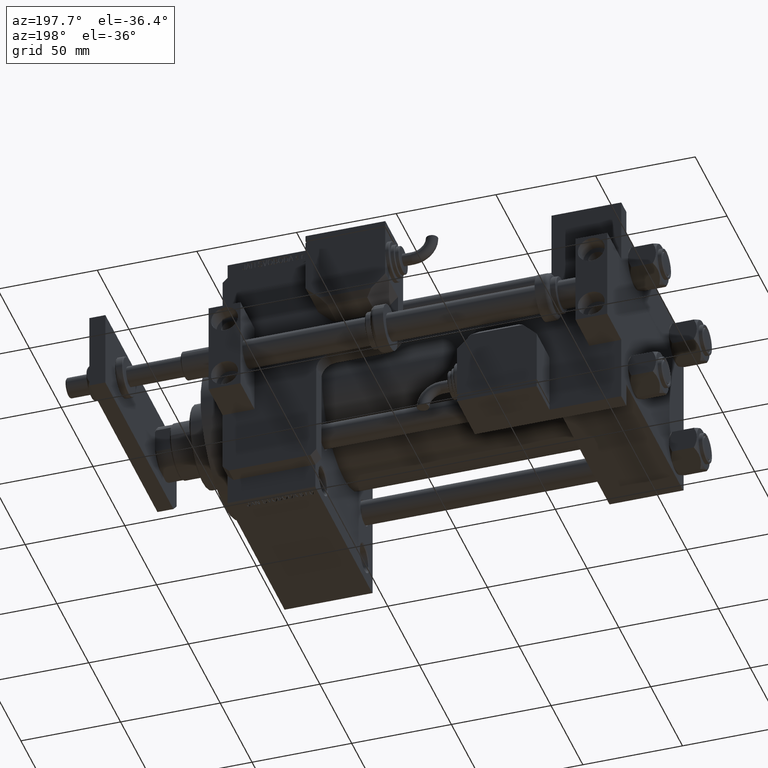
[diagram: clean part render]
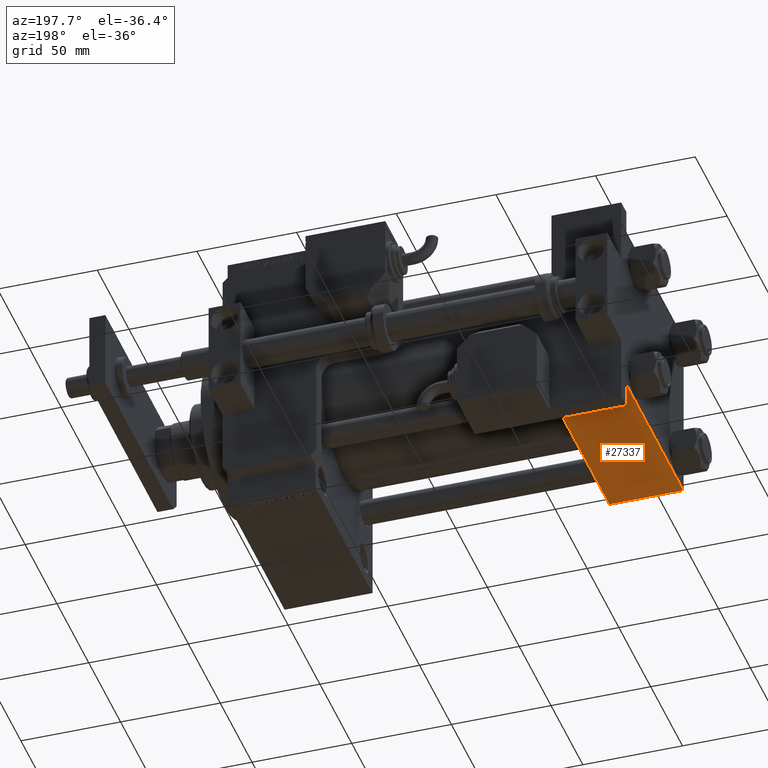
[diagram: same view with one face highlighted and labeled with its STEP entity id]
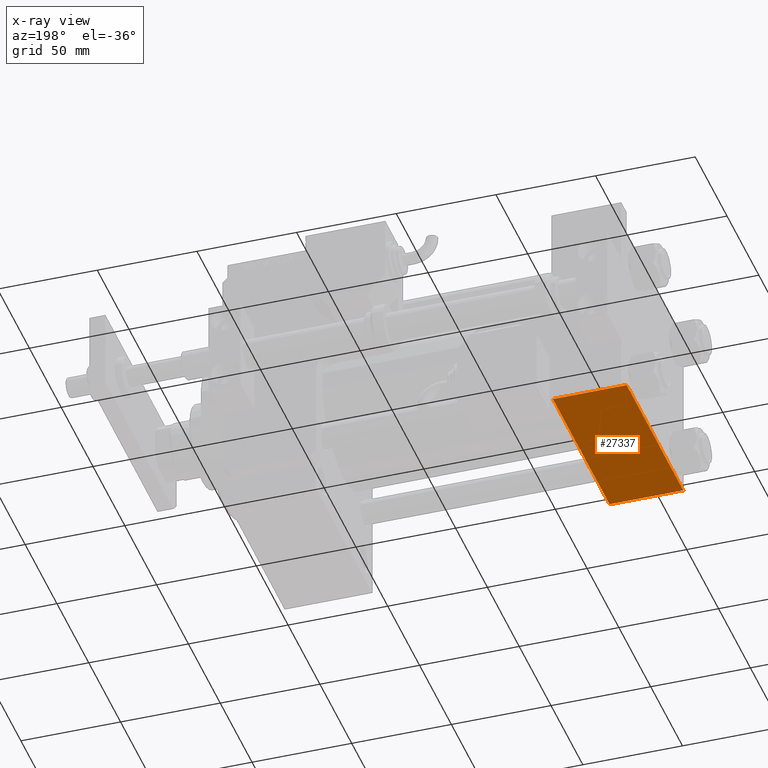
[diagram: x-ray of the same camera — body ghosted, the highlighted face saturated]
A machine part, auxiliary view. The second image highlights one B-rep face of the part: STEP entity #27337.
The next image is the same camera in x-ray: the body ghosted, the highlighted face saturated — about 0% of this face is hidden behind the body in this view.
In plain terms, the highlighted planar face has unit normal (0, 0, -1).
Its self-contained STEP definition (entity closure, byte-faithful):
#801 = PLANE ( 'NONE',  #53052 ) ;
#3457 = EDGE_CURVE ( 'NONE', #40962, #10010, #16460, .T. ) ;
#3506 = CARTESIAN_POINT ( 'NONE',  ( 37.00000000000000000, 45.00000000000000000, -44.99999999999999289 ) ) ;
#6914 = CARTESIAN_POINT ( 'NONE',  ( 0.000000000000000000, -44.49999999999994316, -45.00000000000000000 ) ) ;
#7932 = CARTESIAN_POINT ( 'NONE',  ( 37.00000000000000000, -44.49999999999994316, -45.00000000000000000 ) ) ;
#10010 = VERTEX_POINT ( 'NONE', #44869 ) ;
#11695 = ORIENTED_EDGE ( 'NONE', *, *, #31222, .T. ) ;
#13003 = ORIENTED_EDGE ( 'NONE', *, *, #26079, .T. ) ;
#13916 = FACE_OUTER_BOUND ( 'NONE', #54216, .T. ) ;
#14676 = CARTESIAN_POINT ( 'NONE',  ( 0.000000000000000000, 45.00000000000000000, -44.99999999999999289 ) ) ;
#15186 = ORIENTED_EDGE ( 'NONE', *, *, #3457, .T. ) ;
#16460 = LINE ( 'NONE', #41775, #19425 ) ;
#19232 = VECTOR ( 'NONE', #46782, 1000.000000000000000 ) ;
#19425 = VECTOR ( 'NONE', #21192, 1000.000000000000000 ) ;
#21192 = DIRECTION ( 'NONE',  ( 1.000000000000000000, 0.000000000000000000, 0.000000000000000000 ) ) ;
#25206 = VERTEX_POINT ( 'NONE', #6914 ) ;
#26079 = EDGE_CURVE ( 'NONE', #54346, #25206, #42877, .T. ) ;
#26127 = DIRECTION ( 'NONE',  ( 0.000000000000000000, 1.000000000000000000, 7.709882115452478166E-17 ) ) ;
#27337 = ADVANCED_FACE ( 'NONE', ( #13916 ), #801, .T. ) ;
#30460 = CARTESIAN_POINT ( 'NONE',  ( 0.000000000000000000, 44.50000000000000000, -44.99999999999999289 ) ) ;
#31222 = EDGE_CURVE ( 'NONE', #10010, #54346, #33268, .T. ) ;
#31635 = ORIENTED_EDGE ( 'NONE', *, *, #48510, .F. ) ;
#33268 = LINE ( 'NONE', #3506, #36419 ) ;
#33448 = CARTESIAN_POINT ( 'NONE',  ( 0.000000000000000000, -44.49999999999997158, -45.00000000000000000 ) ) ;
#34498 = VECTOR ( 'NONE', #49133, 1000.000000000000000 ) ;
#35025 = DIRECTION ( 'NONE',  ( 0.000000000000000000, 7.709882115452478166E-17, -1.000000000000000000 ) ) ;
#36419 = VECTOR ( 'NONE', #50232, 1000.000000000000000 ) ;
#40962 = VERTEX_POINT ( 'NONE', #30460 ) ;
#41775 = CARTESIAN_POINT ( 'NONE',  ( 37.00000000000000000, 44.50000000000000000, -44.99999999999999289 ) ) ;
#42877 = LINE ( 'NONE', #33448, #19232 ) ;
#44869 = CARTESIAN_POINT ( 'NONE',  ( 37.00000000000000000, 44.50000000000000000, -44.99999999999999289 ) ) ;
#46782 = DIRECTION ( 'NONE',  ( -1.000000000000000000, 0.000000000000000000, 0.000000000000000000 ) ) ;
#47824 = CARTESIAN_POINT ( 'NONE',  ( 37.00000000000000000, 45.00000000000000000, -44.99999999999999289 ) ) ;
#48510 = EDGE_CURVE ( 'NONE', #40962, #25206, #49412, .T. ) ;
#49133 = DIRECTION ( 'NONE',  ( 0.000000000000000000, -1.000000000000000000, -7.709882115452476934E-17 ) ) ;
#49412 = LINE ( 'NONE', #14676, #34498 ) ;
#50232 = DIRECTION ( 'NONE',  ( 0.000000000000000000, -1.000000000000000000, -7.709882115452476934E-17 ) ) ;
#53052 = AXIS2_PLACEMENT_3D ( 'NONE', #47824, #35025, #26127 ) ;
#54216 = EDGE_LOOP ( 'NONE', ( #31635, #15186, #11695, #13003 ) ) ;
#54346 = VERTEX_POINT ( 'NONE', #7932 ) ;